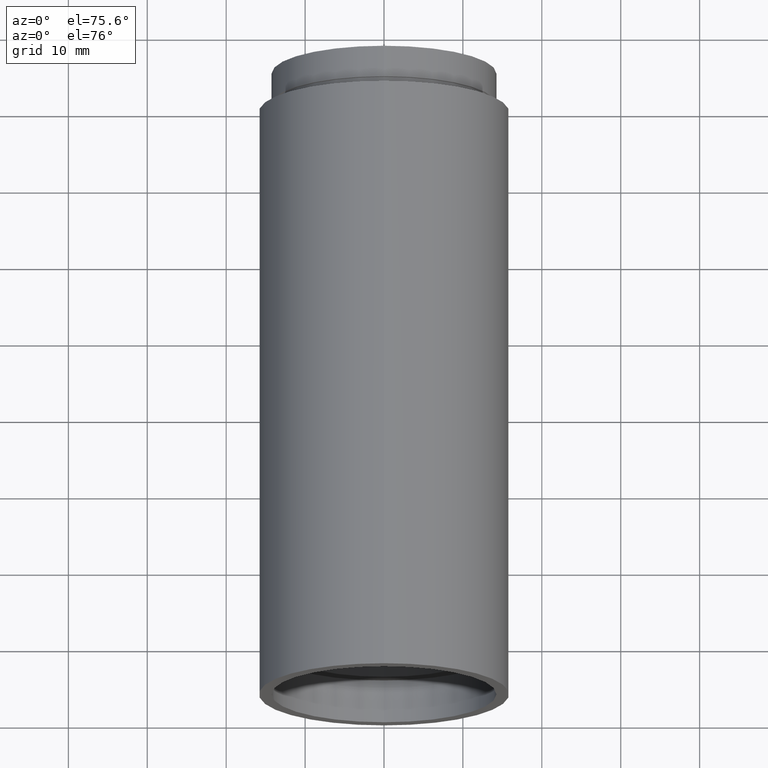
[diagram: clean part render]
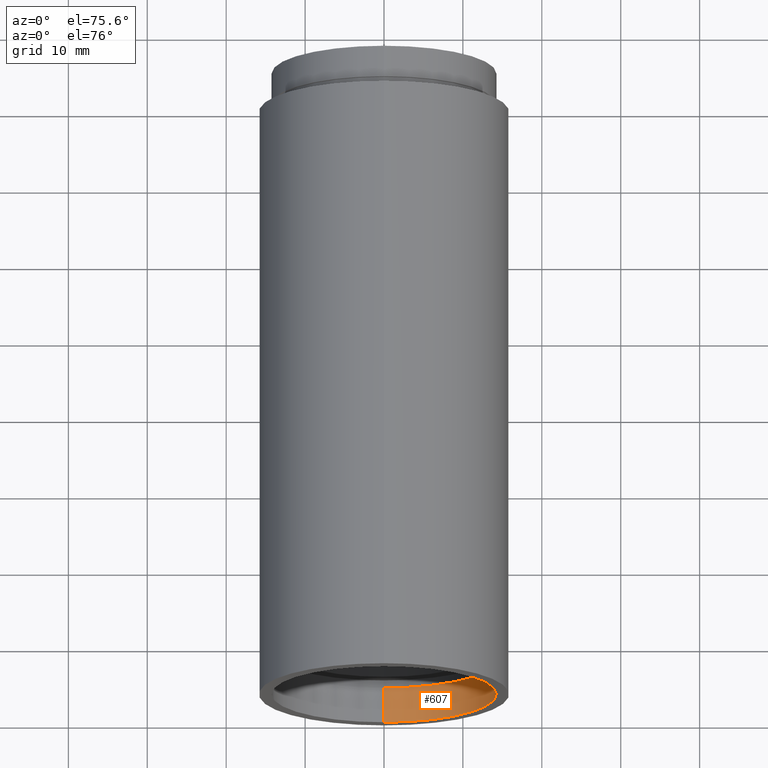
[diagram: same view with one face highlighted and labeled with its STEP entity id]
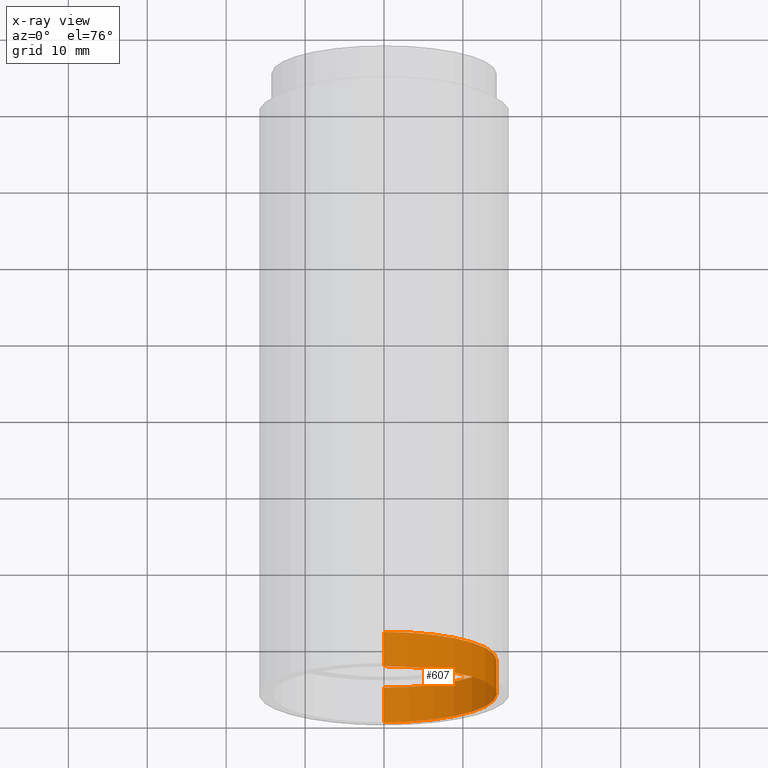
[diagram: x-ray of the same camera — body ghosted, the highlighted face saturated]
A machine part, auxiliary view. The second image highlights one B-rep face of the part: STEP entity #607.
The next image is the same camera in x-ray: the body ghosted, the highlighted face saturated — about 0% of this face is hidden behind the body in this view.
In plain terms, the highlighted cylindrical surface (partial cylindrical patch) has radius 14.25 mm, axis along (-0, 1, -0).
Its self-contained STEP definition (entity closure, byte-faithful):
#19 = CARTESIAN_POINT ( 'NONE',  ( 0.0000000000000000000, 4.500000000000032000, 0.0000000000000000000 ) ) ;
#20 = LINE ( 'NONE', #544, #371 ) ;
#47 = ORIENTED_EDGE ( 'NONE', *, *, #386, .T. ) ;
#68 = CARTESIAN_POINT ( 'NONE',  ( 0.0000000000000000000, 2.775557561562891400E-014, 14.25000000000000000 ) ) ;
#69 = CARTESIAN_POINT ( 'NONE',  ( 1.745121688784978200E-015, 4.500000000000032000, -14.25000000000000000 ) ) ;
#77 = AXIS2_PLACEMENT_3D ( 'NONE', #19, #201, #594 ) ;
#80 = FACE_OUTER_BOUND ( 'NONE', #583, .T. ) ;
#99 = AXIS2_PLACEMENT_3D ( 'NONE', #114, #442, #489 ) ;
#114 = CARTESIAN_POINT ( 'NONE',  ( 0.0000000000000000000, 2.775557561562891400E-014, 0.0000000000000000000 ) ) ;
#185 = EDGE_CURVE ( 'NONE', #548, #456, #266, .T. ) ;
#201 = DIRECTION ( 'NONE',  ( -0.0000000000000000000, 1.000000000000000000, -0.0000000000000000000 ) ) ;
#209 = VERTEX_POINT ( 'NONE', #68 ) ;
#232 = DIRECTION ( 'NONE',  ( -0.0000000000000000000, 1.000000000000000000, -0.0000000000000000000 ) ) ;
#234 = EDGE_CURVE ( 'NONE', #209, #447, #610, .T. ) ;
#266 = CIRCLE ( 'NONE', #77, 14.25000000000000000 ) ;
#286 = AXIS2_PLACEMENT_3D ( 'NONE', #521, #232, #494 ) ;
#289 = ORIENTED_EDGE ( 'NONE', *, *, #310, .F. ) ;
#310 = EDGE_CURVE ( 'NONE', #447, #456, #451, .T. ) ;
#327 = VECTOR ( 'NONE', #428, 1000.000000000000000 ) ;
#335 = CARTESIAN_POINT ( 'NONE',  ( 1.745121688784978200E-015, 161.3761669434274500, -14.25000000000000000 ) ) ;
#371 = VECTOR ( 'NONE', #596, 1000.000000000000000 ) ;
#386 = EDGE_CURVE ( 'NONE', #209, #548, #20, .T. ) ;
#428 = DIRECTION ( 'NONE',  ( -0.0000000000000000000, 1.000000000000000000, -0.0000000000000000000 ) ) ;
#442 = DIRECTION ( 'NONE',  ( -0.0000000000000000000, 1.000000000000000000, -0.0000000000000000000 ) ) ;
#447 = VERTEX_POINT ( 'NONE', #606 ) ;
#451 = LINE ( 'NONE', #335, #327 ) ;
#456 = VERTEX_POINT ( 'NONE', #69 ) ;
#465 = CARTESIAN_POINT ( 'NONE',  ( 0.0000000000000000000, 4.500000000000032000, 14.25000000000000000 ) ) ;
#489 = DIRECTION ( 'NONE',  ( 0.0000000000000000000, 0.0000000000000000000, 1.000000000000000000 ) ) ;
#494 = DIRECTION ( 'NONE',  ( 0.0000000000000000000, 0.0000000000000000000, 1.000000000000000000 ) ) ;
#502 = CYLINDRICAL_SURFACE ( 'NONE', #286, 14.25000000000000000 ) ;
#521 = CARTESIAN_POINT ( 'NONE',  ( 0.0000000000000000000, 161.3761669434274500, 0.0000000000000000000 ) ) ;
#544 = CARTESIAN_POINT ( 'NONE',  ( 0.0000000000000000000, 161.3761669434274500, 14.25000000000000000 ) ) ;
#548 = VERTEX_POINT ( 'NONE', #465 ) ;
#580 = ORIENTED_EDGE ( 'NONE', *, *, #185, .T. ) ;
#583 = EDGE_LOOP ( 'NONE', ( #289, #586, #47, #580 ) ) ;
#586 = ORIENTED_EDGE ( 'NONE', *, *, #234, .F. ) ;
#594 = DIRECTION ( 'NONE',  ( 0.0000000000000000000, 0.0000000000000000000, 1.000000000000000000 ) ) ;
#596 = DIRECTION ( 'NONE',  ( -0.0000000000000000000, 1.000000000000000000, -0.0000000000000000000 ) ) ;
#606 = CARTESIAN_POINT ( 'NONE',  ( 1.745121688784978200E-015, 2.775557561562891400E-014, -14.25000000000000000 ) ) ;
#607 = ADVANCED_FACE ( 'NONE', ( #80 ), #502, .F. ) ;
#610 = CIRCLE ( 'NONE', #99, 14.25000000000000000 ) ;